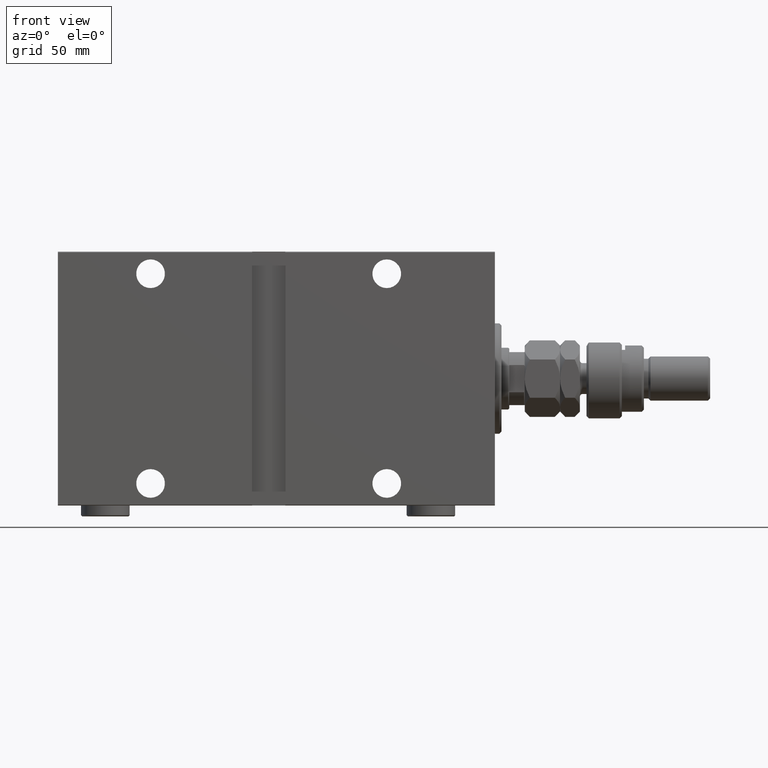
[diagram: clean part render]
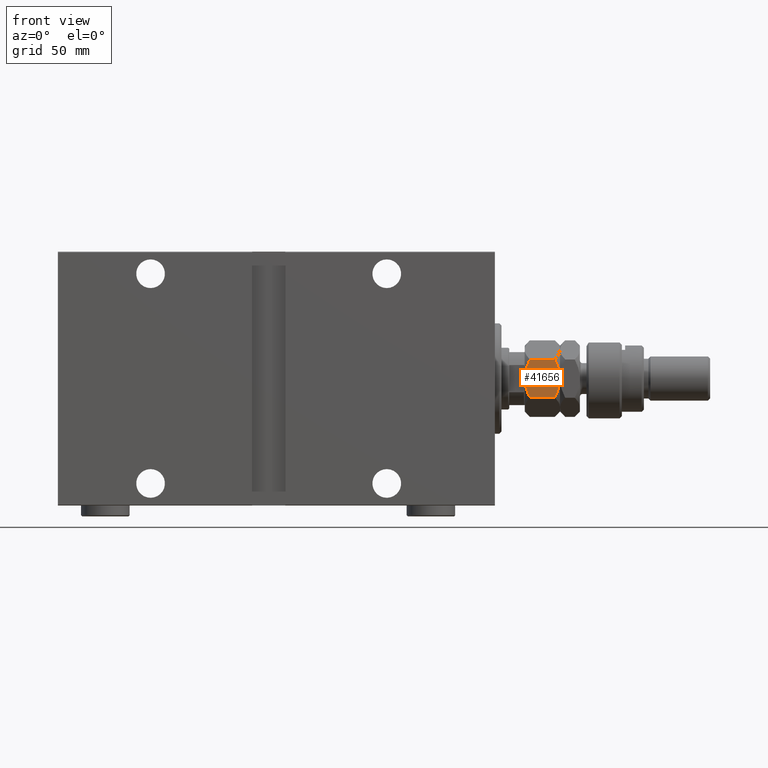
[diagram: same view with one face highlighted and labeled with its STEP entity id]
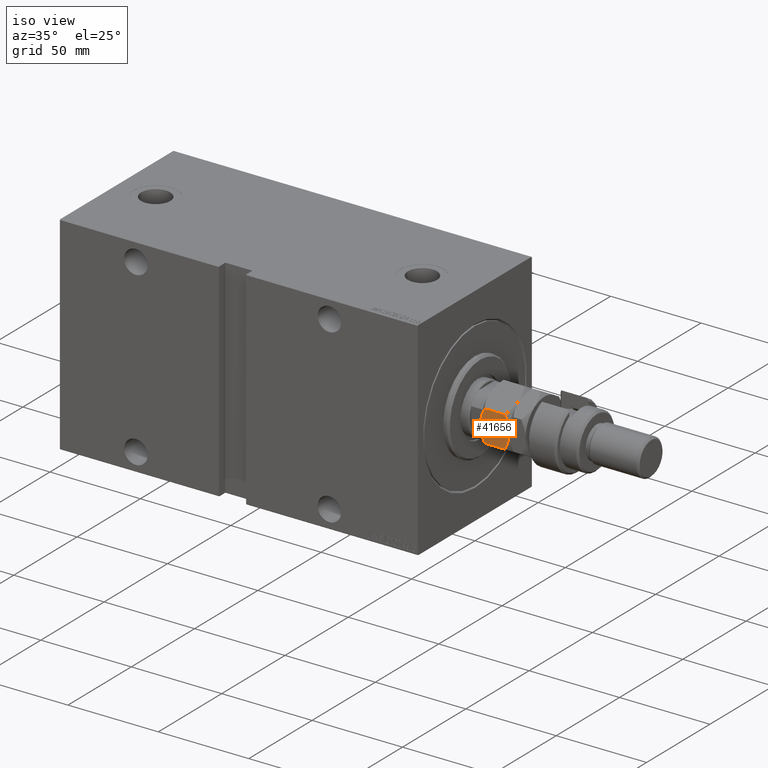
[diagram: same view with one face highlighted and labeled with its STEP entity id]
A machine part, front view. The second image highlights one B-rep face of the part: STEP entity #41656.
A second angle (iso view) of the same face is appended — the face is thin or edge-on in the first view.
In plain terms, the highlighted planar face has unit normal (0, 1, 0).
Its self-contained STEP definition (entity closure, byte-faithful):
#1063 = DIRECTION ( 'NONE',  ( -0.000000000000000000, -0.000000000000000000, -1.000000000000000000 ) ) ;
#1934 = B_SPLINE_CURVE_WITH_KNOTS ( 'NONE', 3,
 ( #24815, #43198, #6670, #32203, #2608, #45836 ),
 .UNSPECIFIED., .F., .F.,
 ( 4, 2, 4 ),
 ( 0.008977392552884455937, 0.01343452311421657053, 0.01789165367554868685 ),
 .UNSPECIFIED. ) ;
#2608 = CARTESIAN_POINT ( 'NONE',  ( 1.174746544192159625, -16.64226784216984711, 1.642267842169777836 ) ) ;
#4157 = VERTEX_POINT ( 'NONE', #20959 ) ;
#4363 = EDGE_LOOP ( 'NONE', ( #17088, #15236, #4714, #29552, #8010, #8711 ) ) ;
#4714 = ORIENTED_EDGE ( 'NONE', *, *, #30283, .F. ) ;
#5524 = CARTESIAN_POINT ( 'NONE',  ( 15.00000000000000000, -8.660254037844389075, 2.320508075688767047 ) ) ;
#6213 = DIRECTION ( 'NONE',  ( -0.4999999999999996669, 0.8660254037844388186, 0.000000000000000000 ) ) ;
#6670 = CARTESIAN_POINT ( 'NONE',  ( 4.913081180497406386, -14.48393933357810681, 0.2303299219392160313 ) ) ;
#7204 = CARTESIAN_POINT ( 'NONE',  ( 7.499999999999994671, -12.99038105676658184, 0.000000000000000000 ) ) ;
#8010 = ORIENTED_EDGE ( 'NONE', *, *, #21326, .T. ) ;
#8711 = ORIENTED_EDGE ( 'NONE', *, *, #28787, .F. ) ;
#10243 = CARTESIAN_POINT ( 'NONE',  ( -2.796947266322166691E-15, -17.32050807568877104, 2.320508075688761718 ) ) ;
#11832 = CARTESIAN_POINT ( 'NONE',  ( 15.00000000000000000, -8.660254037844389075, 2.320508075688767047 ) ) ;
#12437 = CARTESIAN_POINT ( 'NONE',  ( -3.035766082959412415E-15, -17.32050807568877104, 16.00000000000000000 ) ) ;
#12660 = EDGE_CURVE ( 'NONE', #29176, #15038, #45093, .T. ) ;
#12686 = CARTESIAN_POINT ( 'NONE',  ( 12.62116548881249756, -10.03367478323606754, 1.064486067744006892 ) ) ;
#12930 = CARTESIAN_POINT ( 'NONE',  ( 8.156876182308243628, -12.61113341608666083, -1.722865014715246890E-15 ) ) ;
#14189 = CARTESIAN_POINT ( 'NONE',  ( -3.416099238086855886E-15, -17.32050807568877104, 13.67949192431124317 ) ) ;
#14423 = CARTESIAN_POINT ( 'NONE',  ( 6.176419610670694560, -13.75455055083996214, 15.94046462602530312 ) ) ;
#15038 = VERTEX_POINT ( 'NONE', #7204 ) ;
#15236 = ORIENTED_EDGE ( 'NONE', *, *, #35679, .F. ) ;
#15298 = CARTESIAN_POINT ( 'NONE',  ( 2.378834511187501111, -15.94708733029709791, 14.93551393225600066 ) ) ;
#16477 = CARTESIAN_POINT ( 'NONE',  ( -3.035766082959412415E-15, -17.32050807568877104, 16.00000000000000000 ) ) ;
#16498 = CARTESIAN_POINT ( 'NONE',  ( 10.11832554202262102, -11.47869010025374870, 0.2838026619462938327 ) ) ;
#16718 = B_SPLINE_CURVE_WITH_KNOTS ( 'NONE', 3,
 ( #43362, #24507, #24270, #25211, #42896, #38856 ),
 .UNSPECIFIED., .F., .F.,
 ( 4, 2, 4 ),
 ( 0.008977392552884447263, 0.01343452311421656532, 0.01789165367554868338 ),
 .UNSPECIFIED. ) ;
#17088 = ORIENTED_EDGE ( 'NONE', *, *, #12660, .F. ) ;
#18001 = CARTESIAN_POINT ( 'NONE',  ( 1.176108425306638505, -16.64148155974179488, 14.35851844025821755 ) ) ;
#18655 = VERTEX_POINT ( 'NONE', #33231 ) ;
#19720 = VECTOR ( 'NONE', #23873, 1000.000000000000000 ) ;
#20072 = PLANE ( 'NONE',  #29673 ) ;
#20959 = CARTESIAN_POINT ( 'NONE',  ( 7.499999999999993783, -12.99038105676658006, 16.00000000000000000 ) ) ;
#21326 = EDGE_CURVE ( 'NONE', #18655, #27887, #42263, .T. ) ;
#23873 = DIRECTION ( 'NONE',  ( -0.000000000000000000, -0.000000000000000000, -1.000000000000000000 ) ) ;
#24270 = CARTESIAN_POINT ( 'NONE',  ( 10.08691881950258917, -11.49682277995505331, 15.76967007806078591 ) ) ;
#24507 = CARTESIAN_POINT ( 'NONE',  ( 8.804550678576907430, -12.23719837131869248, 16.00000000000000000 ) ) ;
#24544 = B_SPLINE_CURVE_WITH_KNOTS ( 'NONE', 3,
 ( #14189, #18001, #15298, #36396, #32557, #14423, #33448, #28983 ),
 .UNSPECIFIED., .F., .F.,
 ( 4, 2, 2, 4 ),
 ( 2.544309033646407248E-07, 0.004488823491893905240, 0.006733108022389175384, 0.008977392552884447263 ),
 .UNSPECIFIED. ) ;
#24815 = CARTESIAN_POINT ( 'NONE',  ( 7.499999999999994671, -12.99038105676658184, 0.000000000000000000 ) ) ;
#25211 = CARTESIAN_POINT ( 'NONE',  ( 12.61607045183964360, -10.03661640420387080, 14.93952096862912171 ) ) ;
#27244 = CARTESIAN_POINT ( 'NONE',  ( 10.75222765045651308, -11.11270654730956586, 0.4475714085130263475 ) ) ;
#27247 = VECTOR ( 'NONE', #1063, 1000.000000000000000 ) ;
#27630 = CARTESIAN_POINT ( 'NONE',  ( 15.00000000000000000, -8.660254037844389075, 13.67949192431123961 ) ) ;
#27887 = VERTEX_POINT ( 'NONE', #10243 ) ;
#28787 = EDGE_CURVE ( 'NONE', #15038, #27887, #1934, .T. ) ;
#28983 = CARTESIAN_POINT ( 'NONE',  ( 7.499999999999993783, -12.99038105676658006, 16.00000000000000000 ) ) ;
#29062 = VERTEX_POINT ( 'NONE', #27630 ) ;
#29176 = VERTEX_POINT ( 'NONE', #11832 ) ;
#29552 = ORIENTED_EDGE ( 'NONE', *, *, #32429, .F. ) ;
#29673 = AXIS2_PLACEMENT_3D ( 'NONE', #12437, #6213, #42048 ) ;
#30283 = EDGE_CURVE ( 'NONE', #4157, #29062, #16718, .T. ) ;
#31055 = CARTESIAN_POINT ( 'NONE',  ( 8.823580389329300999, -12.22621156269320331, 0.05953537397470176629 ) ) ;
#31294 = CARTESIAN_POINT ( 'NONE',  ( 7.499999999999994671, -12.99038105676658184, 0.000000000000000000 ) ) ;
#32203 = CARTESIAN_POINT ( 'NONE',  ( 2.383929548160349299, -15.94414570932928576, 1.060479031370876957 ) ) ;
#32429 = EDGE_CURVE ( 'NONE', #18655, #4157, #24544, .T. ) ;
#32557 = CARTESIAN_POINT ( 'NONE',  ( 4.881674457977372761, -14.50207201327941320, 15.71619733805371411 ) ) ;
#33052 = CARTESIAN_POINT ( 'NONE',  ( 15.00000000000000000, -8.660254037844389075, 16.00000000000000000 ) ) ;
#33231 = CARTESIAN_POINT ( 'NONE',  ( -3.416099238086855886E-15, -17.32050807568877104, 13.67949192431124317 ) ) ;
#33448 = CARTESIAN_POINT ( 'NONE',  ( 6.843123817691747490, -13.36962869744650284, 16.00000000000000711 ) ) ;
#35679 = EDGE_CURVE ( 'NONE', #29062, #29176, #37125, .T. ) ;
#36396 = CARTESIAN_POINT ( 'NONE',  ( 4.247772349543483372, -14.86805556622359425, 15.55242859148698109 ) ) ;
#37125 = LINE ( 'NONE', #33052, #27247 ) ;
#38478 = CARTESIAN_POINT ( 'NONE',  ( 13.82389157469335750, -9.339280553791367012, 1.641481559741792884 ) ) ;
#38856 = CARTESIAN_POINT ( 'NONE',  ( 15.00000000000000000, -8.660254037844389075, 13.67949192431123961 ) ) ;
#41656 = ADVANCED_FACE ( 'NONE', ( #41818 ), #20072, .F. ) ;
#41818 = FACE_OUTER_BOUND ( 'NONE', #4363, .T. ) ;
#42048 = DIRECTION ( 'NONE',  ( -0.8660254037844388186, -0.4999999999999996669, 0.000000000000000000 ) ) ;
#42263 = LINE ( 'NONE', #16477, #19720 ) ;
#42896 = CARTESIAN_POINT ( 'NONE',  ( 13.82525345580783416, -9.338494271363316557, 14.35773215783021861 ) ) ;
#43198 = CARTESIAN_POINT ( 'NONE',  ( 6.195449321423083688, -13.74356374221447119, -1.770863548392988866E-15 ) ) ;
#43362 = CARTESIAN_POINT ( 'NONE',  ( 7.499999999999993783, -12.99038105676658006, 16.00000000000000000 ) ) ;
#45093 = B_SPLINE_CURVE_WITH_KNOTS ( 'NONE', 3,
 ( #5524, #38478, #12686, #27244, #16498, #31055, #12930, #31294 ),
 .UNSPECIFIED., .F., .F.,
 ( 4, 2, 2, 4 ),
 ( 2.544309033642853415E-07, 0.004488823491893907842, 0.006733108022389181456, 0.008977392552884455937 ),
 .UNSPECIFIED. ) ;
#45836 = CARTESIAN_POINT ( 'NONE',  ( -2.796947266322166691E-15, -17.32050807568877104, 2.320508075688761718 ) ) ;